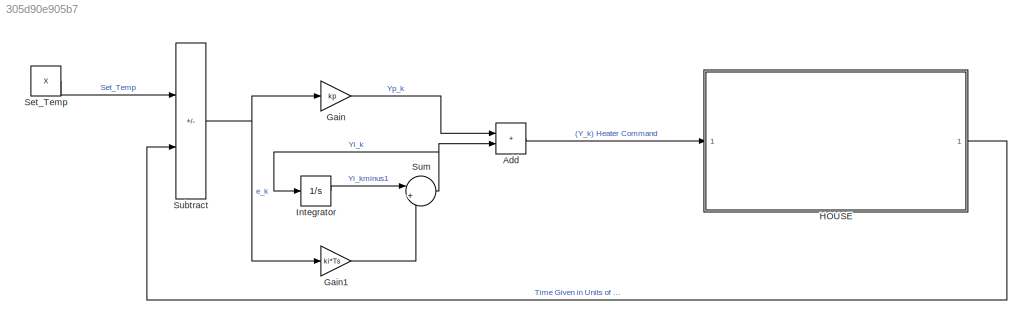
MODEL slx_305d90e905b7
KIND model
CONFIG AbsTol = auto
CONFIG EnableMultiTasking = off
CONFIG FixedStep = auto
CONFIG MaxStep = auto
CONFIG MinStep = auto
CONFIG RelTol = 1e-3
CONFIG SampleTimeConstraint = Unconstrained
CONFIG SolverName = VariableStepAuto
CONFIG StartTime = 0.0
CONFIG StopTime = 10.0
BLOCK [Sum] Add
  IconShape = rectangular
BLOCK [Gain] Gain
  Gain = kp
BLOCK [Gain] Gain1
  Gain = ki*Ts
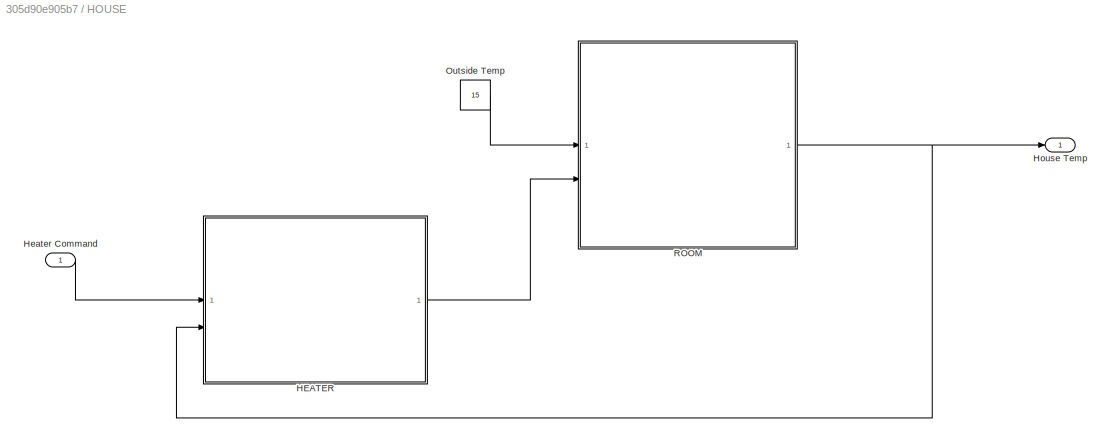
BLOCK [SubSystem] HOUSE
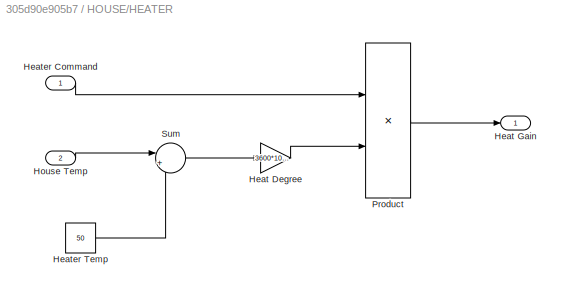
BLOCK [SubSystem] HOUSE/HEATER
BLOCK [Gain] HOUSE/HEATER/Heat Degree
  Gain = 3600*1005.4
BLOCK [Outport] HOUSE/HEATER/Heat Gain
BLOCK [Inport] HOUSE/HEATER/Heater Command
BLOCK [Constant] HOUSE/HEATER/Heater Temp
  Value = 50
BLOCK [Inport] HOUSE/HEATER/House Temp
  Port = 2
BLOCK [Product] HOUSE/HEATER/Product
BLOCK [Sum] HOUSE/HEATER/Sum
  Inputs = |++
BLOCK [Inport] HOUSE/Heater Command
BLOCK [Outport] HOUSE/House Temp
BLOCK [Constant] HOUSE/Outside Temp
  Value = 15
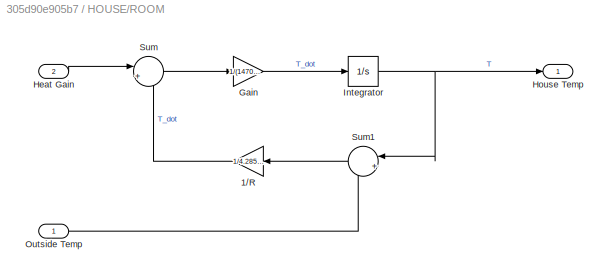
BLOCK [SubSystem] HOUSE/ROOM
BLOCK [Gain] HOUSE/ROOM/1//R
  Gain = 1/4.285e-7
BLOCK [Gain] HOUSE/ROOM/Gain
  Gain = 1/(1470*1005.4)
BLOCK [Inport] HOUSE/ROOM/Heat Gain
  Port = 2
BLOCK [Outport] HOUSE/ROOM/House Temp
BLOCK [Integrator] HOUSE/ROOM/Integrator
BLOCK [Inport] HOUSE/ROOM/Outside Temp
BLOCK [Sum] HOUSE/ROOM/Sum
  Inputs = |+-
BLOCK [Sum] HOUSE/ROOM/Sum1
  Inputs = |+-
BLOCK [Integrator] Integrator
BLOCK [Constant] Set_Temp
  Value = X
BLOCK [Sum] Subtract
  IconShape = rectangular
  Inputs = +-
BLOCK [Sum] Sum
  Inputs = |++
LINE Add:1 -> HOUSE:1
LINE Gain1:1 -> Sum:2
LINE Gain:1 -> Add:1
LINE HOUSE/HEATER/Heat Degree:1 -> HOUSE/HEATER/Product:2
LINE HOUSE/HEATER/Heater Command:1 -> HOUSE/HEATER/Product:1
LINE HOUSE/HEATER/Heater Temp:1 -> HOUSE/HEATER/Sum:2
LINE HOUSE/HEATER/House Temp:1 -> HOUSE/HEATER/Sum:1
LINE HOUSE/HEATER/Product:1 -> HOUSE/HEATER/Heat Gain:1
LINE HOUSE/HEATER/Sum:1 -> HOUSE/HEATER/Heat Degree:1
LINE HOUSE/HEATER:1 -> HOUSE/ROOM:2
LINE HOUSE/Heater Command:1 -> HOUSE/HEATER:1
LINE HOUSE/Outside Temp:1 -> HOUSE/ROOM:1
LINE HOUSE/ROOM/1//R:1 -> HOUSE/ROOM/Sum:2
LINE HOUSE/ROOM/Gain:1 -> HOUSE/ROOM/Integrator:1
LINE HOUSE/ROOM/Heat Gain:1 -> HOUSE/ROOM/Sum:1
NET HOUSE/ROOM/Integrator:1 -> HOUSE/ROOM/House Temp:1, HOUSE/ROOM/Sum1:1
LINE HOUSE/ROOM/Outside Temp:1 -> HOUSE/ROOM/Sum1:2
LINE HOUSE/ROOM/Sum1:1 -> HOUSE/ROOM/1//R:1
LINE HOUSE/ROOM/Sum:1 -> HOUSE/ROOM/Gain:1
NET HOUSE/ROOM:1 -> HOUSE/HEATER:2, HOUSE/House Temp:1
LINE HOUSE:1 -> Subtract:2
LINE Integrator:1 -> Sum:1
LINE Set_Temp:1 -> Subtract:1
NET Subtract:1 -> Gain1:1, Gain:1
NET Sum:1 -> Add:2, Integrator:1
note: NET lines group one-source signal fan-out (src -> all destinations, sorted); 1:1 wires keep LINE
